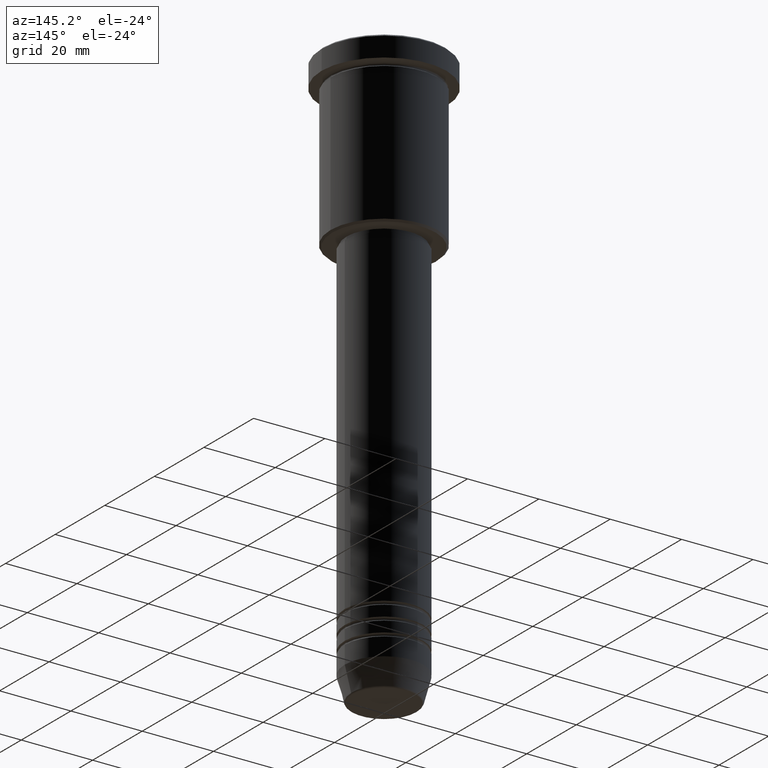
[diagram: clean part render]
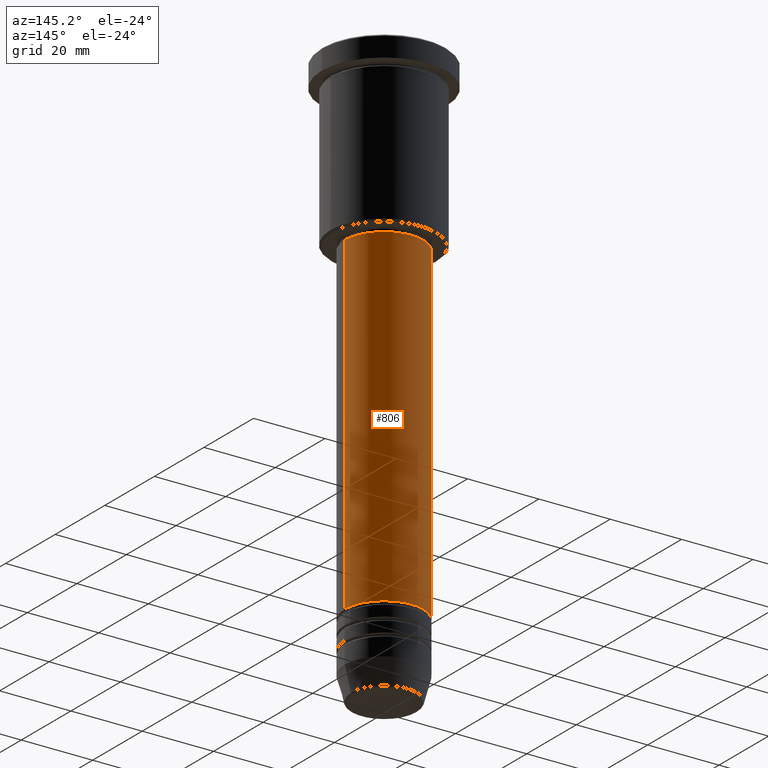
[diagram: same view with one face highlighted and labeled with its STEP entity id]
A machine part, auxiliary view. The second image highlights one B-rep face of the part: STEP entity #806.
In plain terms, the highlighted cylindrical surface (partial cylindrical patch) has radius 11 mm, axis along (-0, -0, 1).
Its self-contained STEP definition (entity closure, byte-faithful):
#39 = DIRECTION ( 'NONE',  ( -0.000000000000000000, -0.000000000000000000, 1.000000000000000000 ) ) ;
#46 = EDGE_CURVE ( 'NONE', #199, #669, #103, .T. ) ;
#103 = CIRCLE ( 'NONE', #711, 11.00000000000000000 ) ;
#114 = DIRECTION ( 'NONE',  ( -0.000000000000000000, -0.000000000000000000, 1.000000000000000000 ) ) ;
#120 = FACE_OUTER_BOUND ( 'NONE', #729, .T. ) ;
#140 = DIRECTION ( 'NONE',  ( -0.000000000000000000, -0.000000000000000000, 1.000000000000000000 ) ) ;
#153 = LINE ( 'NONE', #675, #735 ) ;
#199 = VERTEX_POINT ( 'NONE', #462 ) ;
#221 = DIRECTION ( 'NONE',  ( 1.000000000000000000, 0.000000000000000000, 0.000000000000000000 ) ) ;
#260 = AXIS2_PLACEMENT_3D ( 'NONE', #484, #649, #861 ) ;
#265 = ORIENTED_EDGE ( 'NONE', *, *, #811, .F. ) ;
#347 = EDGE_CURVE ( 'NONE', #926, #913, #874, .T. ) ;
#421 = ORIENTED_EDGE ( 'NONE', *, *, #46, .T. ) ;
#427 = EDGE_CURVE ( 'NONE', #669, #913, #153, .T. ) ;
#462 = CARTESIAN_POINT ( 'NONE',  ( 11.00000000000000000, 0.000000000000000000, -139.9999999999999147 ) ) ;
#479 = LINE ( 'NONE', #854, #960 ) ;
#484 = CARTESIAN_POINT ( 'NONE',  ( 0.000000000000000000, 0.000000000000000000, 0.000000000000000000 ) ) ;
#487 = CARTESIAN_POINT ( 'NONE',  ( 0.000000000000000000, 0.000000000000000000, -139.9999999999999147 ) ) ;
#488 = ORIENTED_EDGE ( 'NONE', *, *, #427, .T. ) ;
#558 = AXIS2_PLACEMENT_3D ( 'NONE', #562, #114, #221 ) ;
#562 = CARTESIAN_POINT ( 'NONE',  ( 0.000000000000000000, 0.000000000000000000, -47.00000000000000711 ) ) ;
#569 = ORIENTED_EDGE ( 'NONE', *, *, #347, .F. ) ;
#649 = DIRECTION ( 'NONE',  ( -0.000000000000000000, -0.000000000000000000, 1.000000000000000000 ) ) ;
#669 = VERTEX_POINT ( 'NONE', #817 ) ;
#675 = CARTESIAN_POINT ( 'NONE',  ( -11.00000000000000000, 1.347111479062088405E-15, 0.000000000000000000 ) ) ;
#711 = AXIS2_PLACEMENT_3D ( 'NONE', #487, #783, #864 ) ;
#729 = EDGE_LOOP ( 'NONE', ( #421, #488, #569, #265 ) ) ;
#735 = VECTOR ( 'NONE', #140, 1000.000000000000000 ) ;
#768 = CYLINDRICAL_SURFACE ( 'NONE', #260, 11.00000000000000000 ) ;
#783 = DIRECTION ( 'NONE',  ( -0.000000000000000000, -0.000000000000000000, 1.000000000000000000 ) ) ;
#806 = ADVANCED_FACE ( 'NONE', ( #120 ), #768, .T. ) ;
#811 = EDGE_CURVE ( 'NONE', #199, #926, #479, .T. ) ;
#817 = CARTESIAN_POINT ( 'NONE',  ( -11.00000000000000000, 1.347111479062088405E-15, -139.9999999999999147 ) ) ;
#854 = CARTESIAN_POINT ( 'NONE',  ( 11.00000000000000000, 0.000000000000000000, 0.000000000000000000 ) ) ;
#861 = DIRECTION ( 'NONE',  ( 1.000000000000000000, 0.000000000000000000, 0.000000000000000000 ) ) ;
#864 = DIRECTION ( 'NONE',  ( 1.000000000000000000, 0.000000000000000000, 0.000000000000000000 ) ) ;
#874 = CIRCLE ( 'NONE', #558, 11.00000000000000000 ) ;
#913 = VERTEX_POINT ( 'NONE', #1167 ) ;
#926 = VERTEX_POINT ( 'NONE', #1024 ) ;
#960 = VECTOR ( 'NONE', #39, 1000.000000000000000 ) ;
#1024 = CARTESIAN_POINT ( 'NONE',  ( 11.00000000000000000, 0.000000000000000000, -47.00000000000000711 ) ) ;
#1167 = CARTESIAN_POINT ( 'NONE',  ( -11.00000000000000000, 1.347111479062088405E-15, -47.00000000000000711 ) ) ;